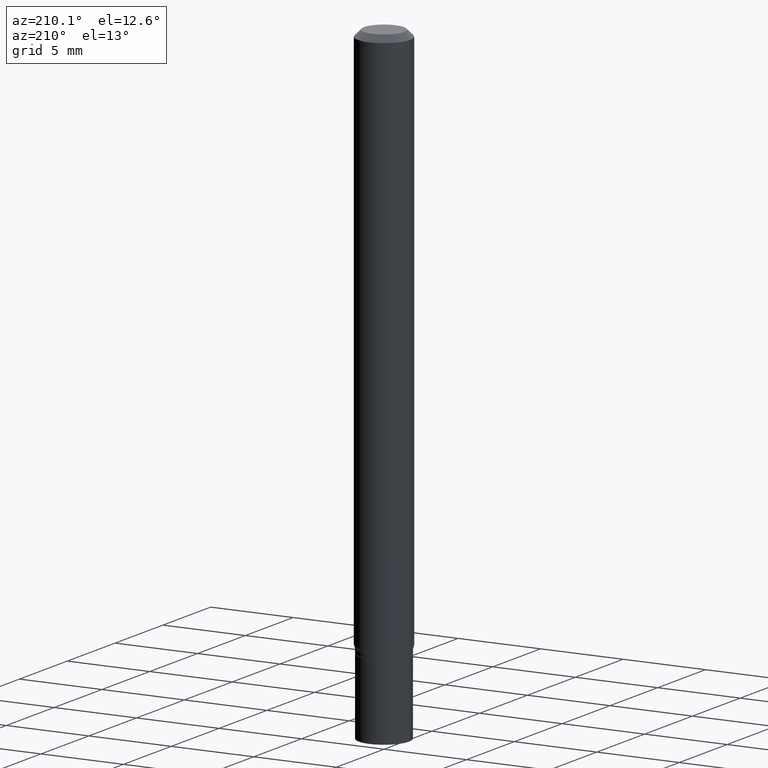
[diagram: clean part render]
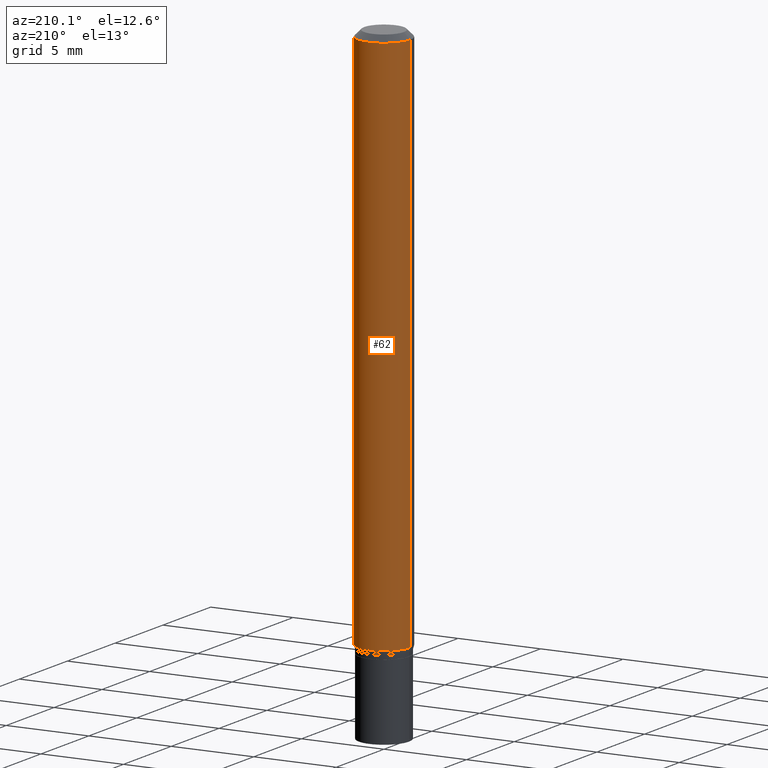
[diagram: same view with one face highlighted and labeled with its STEP entity id]
A machine part, auxiliary view. The second image highlights one B-rep face of the part: STEP entity #62.
In plain terms, the highlighted cylindrical surface (edge-blend (fillet) strip) has radius 1.5875 mm, axis along (-0, 0, 1).
Its self-contained STEP definition (entity closure, byte-faithful):
#20 = VERTEX_POINT ( 'NONE', #283 ) ;
#24 = CIRCLE ( 'NONE', #443, 0.06250000000000000000 ) ;
#30 = CARTESIAN_POINT ( 'NONE',  ( 0.000000000000000000, 0.000000000000000000, 0.000000000000000000 ) ) ;
#41 = CARTESIAN_POINT ( 'NONE',  ( 3.180747601520009606E-29, -4.541264589508918231E-15, -1.300669872981077946 ) ) ;
#43 = DIRECTION ( 'NONE',  ( 1.000000000000000000, -6.982962677686262766E-15, 0.000000000000000000 ) ) ;
#44 = DIRECTION ( 'NONE',  ( -2.445468806185136597E-29, 3.491481338843145583E-15, 1.000000000000000000 ) ) ;
#56 = ORIENTED_EDGE ( 'NONE', *, *, #164, .F. ) ;
#61 = AXIS2_PLACEMENT_3D ( 'NONE', #292, #332, #442 ) ;
#62 = ADVANCED_FACE ( 'NONE', ( #106 ), #287, .T. ) ;
#74 = DIRECTION ( 'NONE',  ( -2.445468806185136877E-29, 3.491481338843145188E-15, 1.000000000000000000 ) ) ;
#106 = FACE_OUTER_BOUND ( 'NONE', #355, .T. ) ;
#125 = VERTEX_POINT ( 'NONE', #136 ) ;
#134 = DIRECTION ( 'NONE',  ( -2.445468806185136597E-29, 3.491481338843145583E-15, 1.000000000000000000 ) ) ;
#136 = CARTESIAN_POINT ( 'NONE',  ( -0.06250000000000000000, -1.852729194945719842E-15, -0.01499999999999999944 ) ) ;
#149 = EDGE_CURVE ( 'NONE', #20, #125, #439, .T. ) ;
#151 = EDGE_CURVE ( 'NONE', #293, #425, #24, .T. ) ;
#160 = VECTOR ( 'NONE', #74, 39.37007874015748143 ) ;
#164 = EDGE_CURVE ( 'NONE', #293, #20, #365, .T. ) ;
#165 = EDGE_CURVE ( 'NONE', #425, #125, #405, .T. ) ;
#204 = ORIENTED_EDGE ( 'NONE', *, *, #151, .T. ) ;
#226 = CARTESIAN_POINT ( 'NONE',  ( 0.06250000000000000000, -4.364351673553916694E-16, 3.047610484872459871E-30 ) ) ;
#245 = DIRECTION ( 'NONE',  ( 1.000000000000000000, -6.982962677686266711E-15, 4.876176775795935793E-29 ) ) ;
#253 = DIRECTION ( 'NONE',  ( -2.445468806185136877E-29, 3.491481338843145188E-15, 1.000000000000000000 ) ) ;
#272 = CARTESIAN_POINT ( 'NONE',  ( 0.06250000000000000000, -4.977699756864309111E-15, -1.300669872981077946 ) ) ;
#274 = VECTOR ( 'NONE', #253, 39.37007874015748143 ) ;
#283 = CARTESIAN_POINT ( 'NONE',  ( 0.06250000000000000000, -4.888073874380388472E-16, -0.01499999999999999944 ) ) ;
#287 = CYLINDRICAL_SURFACE ( 'NONE', #416, 0.06250000000000000000 ) ;
#292 = CARTESIAN_POINT ( 'NONE',  ( 3.668203209277705088E-31, -5.237222008264718399E-17, -0.01499999999999999944 ) ) ;
#293 = VERTEX_POINT ( 'NONE', #272 ) ;
#329 = CARTESIAN_POINT ( 'NONE',  ( -0.06250000000000000000, 4.440892098500626162E-16, -3.074334431409316114E-30 ) ) ;
#332 = DIRECTION ( 'NONE',  ( -2.445468806185136597E-29, 3.491481338843145583E-15, 1.000000000000000000 ) ) ;
#337 = CARTESIAN_POINT ( 'NONE',  ( -0.06250000000000000000, -4.097175379658855615E-15, -1.300669872981077946 ) ) ;
#338 = ORIENTED_EDGE ( 'NONE', *, *, #165, .T. ) ;
#355 = EDGE_LOOP ( 'NONE', ( #204, #338, #423, #56 ) ) ;
#365 = LINE ( 'NONE', #226, #160 ) ;
#405 = LINE ( 'NONE', #329, #274 ) ;
#416 = AXIS2_PLACEMENT_3D ( 'NONE', #30, #134, #245 ) ;
#423 = ORIENTED_EDGE ( 'NONE', *, *, #149, .F. ) ;
#425 = VERTEX_POINT ( 'NONE', #337 ) ;
#439 = CIRCLE ( 'NONE', #61, 0.06250000000000000000 ) ;
#442 = DIRECTION ( 'NONE',  ( 1.000000000000000000, -6.982962677686266711E-15, 0.000000000000000000 ) ) ;
#443 = AXIS2_PLACEMENT_3D ( 'NONE', #41, #44, #43 ) ;